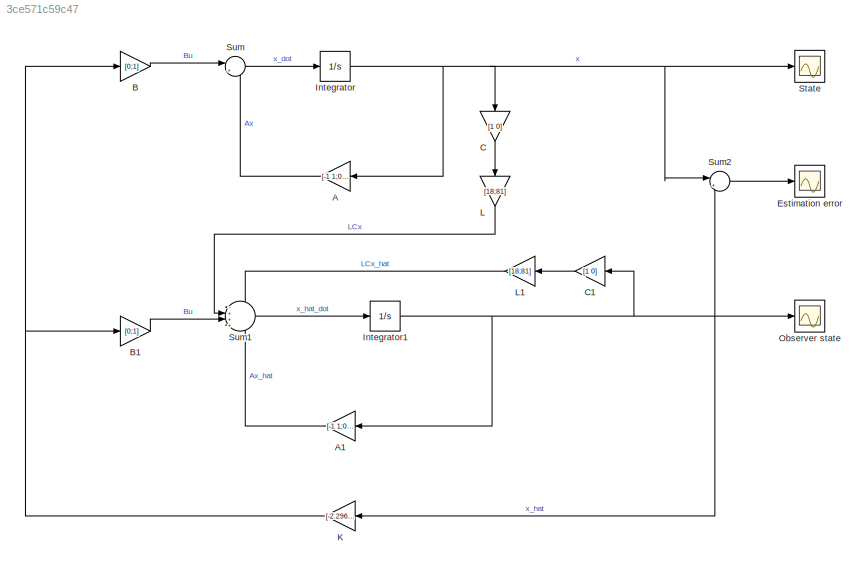
MODEL slx_3ce571c59c47
KIND model
CONFIG AbsTol = auto
CONFIG EnableMultiTasking = off
CONFIG FixedStep = auto
CONFIG MaxStep = auto
CONFIG MinStep = auto
CONFIG RelTol = 1e-3
CONFIG SampleTimeConstraint = Unconstrained
CONFIG SolverName = VariableStepAuto
CONFIG StartTime = 0.0
CONFIG StopTime = 10
BLOCK [Gain] A
  Gain = [-1 1;0 -1]
  Multiplication = Matrix(K*u)
BLOCK [Gain] A1
  Gain = [-1 1;0 -1]
  Multiplication = Matrix(K*u)
BLOCK [Gain] B
  Gain = [0;1]
  Multiplication = Matrix(K*u)
BLOCK [Gain] B1
  Gain = [0;1]
  Multiplication = Matrix(K*u)
BLOCK [Gain] C
  Gain = [1 0]
  Multiplication = Matrix(K*u)
  NameLocation = left
BLOCK [Gain] C1
  Gain = [1 0]
  Multiplication = Matrix(K*u)
  NameLocation = top
BLOCK [Scope] Estimation error
  Floating = off
  NumInputPorts = 1
  ScopeSpecificationString = Simulink.scopes.TimeScopeBlockCfg('CurrentConfiguration', extmgr.ConfigurationSet(extmgr.Configuration('Core','General UI',true),extmgr.Configuration('Core','Source UI',true),extmgr.Configuration('Sources','WiredSimulink',true,'DataLoggingVariableName','ScopeData2'),extmgr.Configuration('Visuals','Time Domain',true,'SerializedDisplays',{struct('MinYLimReal','-5.13191','MaxYLimReal','1.68132','YLab...<+1374ch>
BLOCK [Integrator] Integrator
  InitialCondition = [1;-1]
BLOCK [Integrator] Integrator1
  InitialCondition = [0;1]
BLOCK [Gain] K
  Gain = [-2.2963 -2.9487]
  Multiplication = Matrix(K*u)
BLOCK [Gain] L
  Gain = [18;81]
  Multiplication = Matrix(K*u)
  NameLocation = left
BLOCK [Gain] L1
  Gain = [18;81]
  Multiplication = Matrix(K*u)
  NameLocation = top
BLOCK [Scope] Observer state
  Floating = off
  NumInputPorts = 1
  ScopeSpecificationString = Simulink.scopes.TimeScopeBlockCfg('CurrentConfiguration', extmgr.ConfigurationSet(extmgr.Configuration('Core','General UI',true),extmgr.Configuration('Core','Source UI',true),extmgr.Configuration('Sources','WiredSimulink',true,'DataLoggingVariableName','ScopeData1'),extmgr.Configuration('Visuals','Time Domain',true,'SerializedDisplays',{struct('MinYLimReal','-1.44041','MaxYLimReal','3.29963','YLab...<+1406ch>
BLOCK [Scope] State
  Floating = off
  NumInputPorts = 1
  ScopeSpecificationString = Simulink.scopes.TimeScopeBlockCfg('CurrentConfiguration', extmgr.ConfigurationSet(extmgr.Configuration('Core','General UI',true),extmgr.Configuration('Core','Source UI',true),extmgr.Configuration('Sources','WiredSimulink',true),extmgr.Configuration('Visuals','Time Domain',true,'SerializedDisplays',{struct('MinYLimReal','-2.63311','MaxYLimReal','1.40368','YLabelReal','','MinYLimMag','0.00000','MaxY...<+1329ch>
BLOCK [Sum] Sum
  Inputs = |++
BLOCK [Sum] Sum1
  Inputs = -+++
BLOCK [Sum] Sum2
  Inputs = |+-
LINE A1:1 -> Sum1:4
LINE A:1 -> Sum:2
LINE B1:1 -> Sum1:3
LINE B:1 -> Sum:1
LINE C1:1 -> L1:1
LINE C:1 -> L:1
NET Integrator1:1 -> A1:1, C1:1, K:1, Observer state:1, Sum2:2
NET Integrator:1 -> A:1, C:1, State:1, Sum2:1
NET K:1 -> B1:1, B:1
LINE L1:1 -> Sum1:1
LINE L:1 -> Sum1:2
LINE Sum1:1 -> Integrator1:1
LINE Sum2:1 -> Estimation error:1
LINE Sum:1 -> Integrator:1
note: NET lines group one-source signal fan-out (src -> all destinations, sorted); 1:1 wires keep LINE
